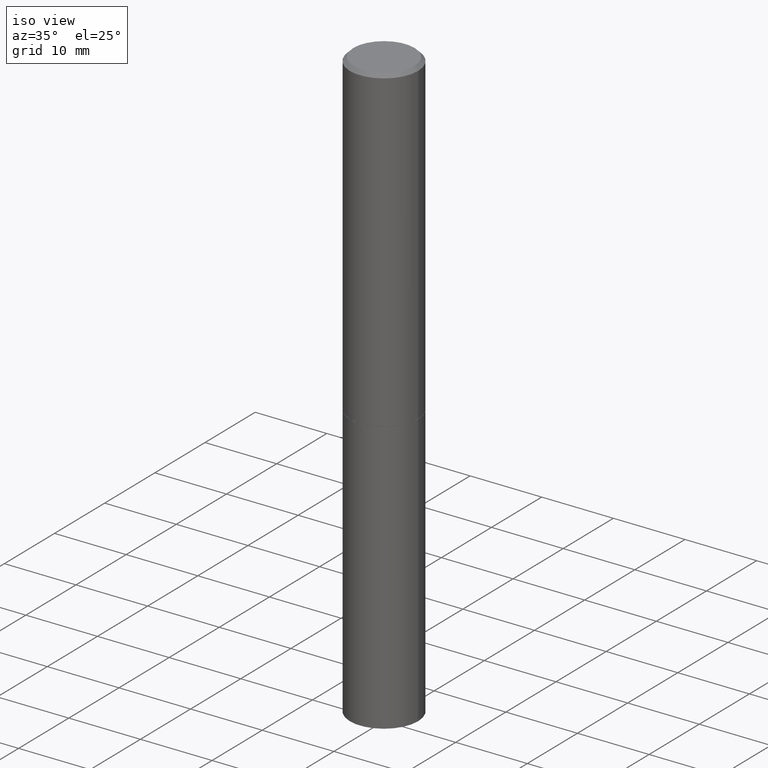
[diagram: clean part render]
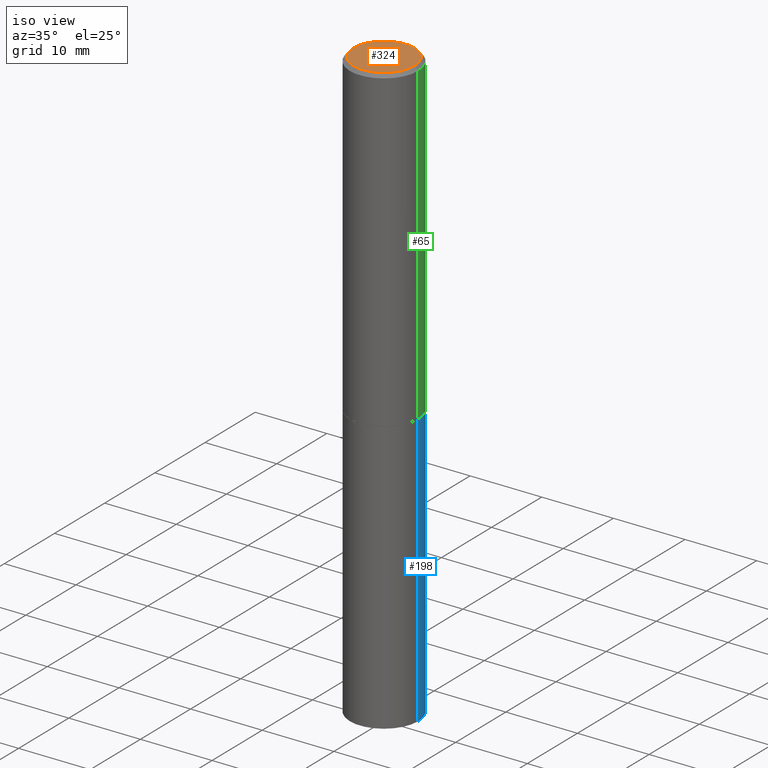
[diagram: same view with three faces highlighted in distinct colors, each labeled with its STEP entity id]
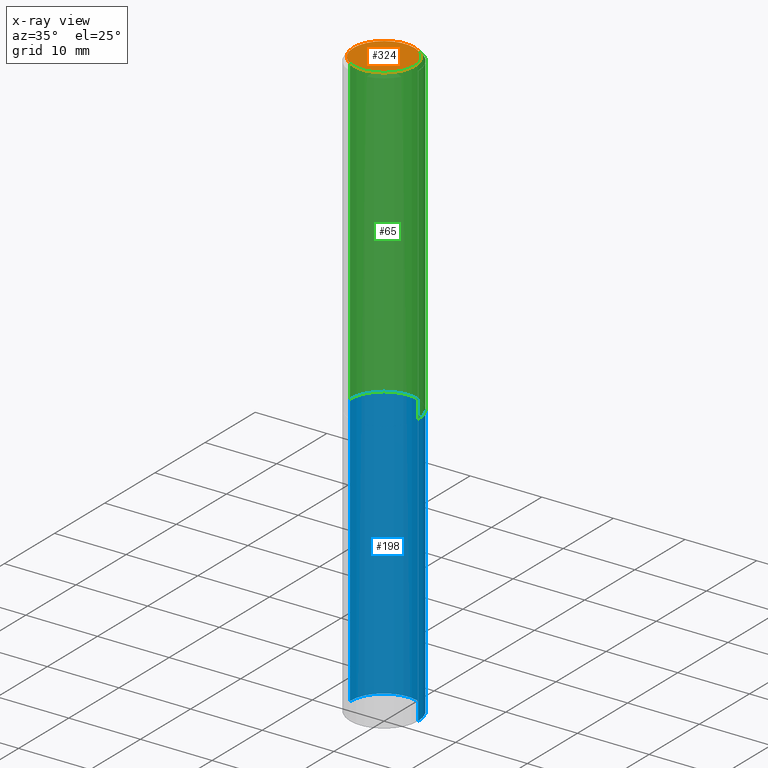
[diagram: x-ray of the same camera — body ghosted, the three highlighted faces saturated]
A machine part, iso view with three faces highlighted in distinct colors.
The next image is the same camera in x-ray (body ghosted, the three faces saturated) — at least one of them is partly hidden behind the body in this view.
Their STEP definitions:

[orange] entity #324 — the highlighted planar face has unit normal (0, -0, -1).
#8 = CIRCLE ( 'NONE', #335, 0.1674999999999998435 ) ;
#10 = DIRECTION ( 'NONE',  ( -2.445468806185136597E-29, 3.491481338843145583E-15, 1.000000000000000000 ) ) ;
#14 = DIRECTION ( 'NONE',  ( 1.000000000000000000, -6.982962677686266711E-15, 4.876502603340349702E-29 ) ) ;
#69 = DIRECTION ( 'NONE',  ( -1.000000000000000000, 6.982962677686265922E-15, -4.876176775795935793E-29 ) ) ;
#85 = DIRECTION ( 'NONE',  ( 1.000000000000000000, -6.982962677686266711E-15, 4.876502603340349702E-29 ) ) ;
#88 = AXIS2_PLACEMENT_3D ( 'NONE', #364, #360, #85 ) ;
#94 = CARTESIAN_POINT ( 'NONE',  ( 1.169646248512448609E-15, 0.1674999999999998435, -5.784203555210757353E-16 ) ) ;
#97 = EDGE_CURVE ( 'NONE', #265, #98, #8, .T. ) ;
#98 = VERTEX_POINT ( 'NONE', #128 ) ;
#128 = CARTESIAN_POINT ( 'NONE',  ( -0.1674999999999998435, 1.204561061900879864E-15, 1.280553747029293077E-17 ) ) ;
#137 = CIRCLE ( 'NONE', #88, 0.1674999999999998435 ) ;
#142 = AXIS2_PLACEMENT_3D ( 'NONE', #94, #321, #69 ) ;
#169 = CARTESIAN_POINT ( 'NONE',  ( 0.1674999999999998435, -1.252653207992877302E-15, 1.280553747030970331E-17 ) ) ;
#209 = PLANE ( 'NONE',  #142 ) ;
#232 = EDGE_CURVE ( 'NONE', #98, #265, #137, .T. ) ;
#235 = FACE_OUTER_BOUND ( 'NONE', #345, .T. ) ;
#238 = ORIENTED_EDGE ( 'NONE', *, *, #97, .T. ) ;
#265 = VERTEX_POINT ( 'NONE', #169 ) ;
#272 = CARTESIAN_POINT ( 'NONE',  ( -3.131554243005659264E-46, 4.471029511141341874E-32, 1.280553747030123384E-17 ) ) ;
#321 = DIRECTION ( 'NONE',  ( 2.438088387897960049E-29, -3.491481338843145188E-15, -1.000000000000000000 ) ) ;
#324 = ADVANCED_FACE ( 'NONE', ( #235 ), #209, .F. ) ;
#335 = AXIS2_PLACEMENT_3D ( 'NONE', #272, #10, #14 ) ;
#345 = EDGE_LOOP ( 'NONE', ( #348, #238 ) ) ;
#348 = ORIENTED_EDGE ( 'NONE', *, *, #232, .T. ) ;
#360 = DIRECTION ( 'NONE',  ( -2.445468806185136597E-29, 3.491481338843145583E-15, 1.000000000000000000 ) ) ;
#364 = CARTESIAN_POINT ( 'NONE',  ( -3.131554243005659264E-46, 4.471029511141341874E-32, 1.280553747030123384E-17 ) ) ;

[blue] entity #198 — the highlighted cylindrical surface (partial cylindrical patch) has radius 4.7625 mm, axis along (-0, 0, 1).
#9 = CARTESIAN_POINT ( 'NONE',  ( 0.000000000000000000, 0.000000000000000000, 0.000000000000000000 ) ) ;
#20 = DIRECTION ( 'NONE',  ( -2.445468806185136877E-29, 3.491481338843145188E-15, 1.000000000000000000 ) ) ;
#32 = DIRECTION ( 'NONE',  ( 1.000000000000000000, -6.982962677686261189E-15, 0.000000000000000000 ) ) ;
#33 = ORIENTED_EDGE ( 'NONE', *, *, #349, .F. ) ;
#62 = ORIENTED_EDGE ( 'NONE', *, *, #204, .F. ) ;
#70 = CARTESIAN_POINT ( 'NONE',  ( 0.1875000000000000555, -7.419397845041680468E-15, -1.750000000000000222 ) ) ;
#92 = FACE_OUTER_BOUND ( 'NONE', #268, .T. ) ;
#101 = ORIENTED_EDGE ( 'NONE', *, *, #187, .T. ) ;
#102 = VERTEX_POINT ( 'NONE', #70 ) ;
#112 = CARTESIAN_POINT ( 'NONE',  ( -0.1875000000000000278, -7.396435717557677094E-15, -3.250000000000000000 ) ) ;
#121 = AXIS2_PLACEMENT_3D ( 'NONE', #313, #342, #176 ) ;
#127 = DIRECTION ( 'NONE',  ( -2.445468806185136597E-29, 3.491481338843145583E-15, 1.000000000000000000 ) ) ;
#129 = DIRECTION ( 'NONE',  ( -2.445468806185136877E-29, 3.491481338843145188E-15, 1.000000000000000000 ) ) ;
#147 = CARTESIAN_POINT ( 'NONE',  ( 7.947773620101693940E-29, -1.134731435124022443E-14, -3.250000000000000000 ) ) ;
#159 = VECTOR ( 'NONE', #129, 39.37007874015748143 ) ;
#176 = DIRECTION ( 'NONE',  ( 1.000000000000000000, -6.982962677686265922E-15, 0.000000000000000000 ) ) ;
#187 = EDGE_CURVE ( 'NONE', #201, #292, #216, .T. ) ;
#189 = CARTESIAN_POINT ( 'NONE',  ( 0.1875000000000000555, -1.309305502066175205E-15, 9.142831454617382414E-30 ) ) ;
#192 = AXIS2_PLACEMENT_3D ( 'NONE', #9, #127, #347 ) ;
#198 = ADVANCED_FACE ( 'NONE', ( #92 ), #267, .T. ) ;
#201 = VERTEX_POINT ( 'NONE', #112 ) ;
#204 = EDGE_CURVE ( 'NONE', #102, #292, #355, .T. ) ;
#210 = CARTESIAN_POINT ( 'NONE',  ( -0.1875000000000000555, 1.332267629550188243E-15, -9.223003294227950793E-30 ) ) ;
#216 = LINE ( 'NONE', #210, #159 ) ;
#243 = VERTEX_POINT ( 'NONE', #366 ) ;
#259 = DIRECTION ( 'NONE',  ( -2.445468806185136597E-29, 3.491481338843145583E-15, 1.000000000000000000 ) ) ;
#263 = CARTESIAN_POINT ( 'NONE',  ( -0.1875000000000000555, -7.396435717557675516E-15, -1.750000000000000222 ) ) ;
#267 = CYLINDRICAL_SURFACE ( 'NONE', #192, 0.1875000000000000555 ) ;
#268 = EDGE_LOOP ( 'NONE', ( #329, #101, #62, #33 ) ) ;
#274 = CIRCLE ( 'NONE', #338, 0.1875000000000000278 ) ;
#284 = EDGE_CURVE ( 'NONE', #243, #201, #274, .T. ) ;
#292 = VERTEX_POINT ( 'NONE', #263 ) ;
#313 = CARTESIAN_POINT ( 'NONE',  ( 4.279570410823989044E-29, -6.110092342975505460E-15, -1.750000000000000222 ) ) ;
#317 = VECTOR ( 'NONE', #20, 39.37007874015748143 ) ;
#329 = ORIENTED_EDGE ( 'NONE', *, *, #284, .T. ) ;
#338 = AXIS2_PLACEMENT_3D ( 'NONE', #147, #259, #32 ) ;
#342 = DIRECTION ( 'NONE',  ( -2.445468806185136597E-29, 3.491481338843145583E-15, 1.000000000000000000 ) ) ;
#347 = DIRECTION ( 'NONE',  ( 1.000000000000000000, -6.982962677686265922E-15, 4.876176775795935793E-29 ) ) ;
#349 = EDGE_CURVE ( 'NONE', #243, #102, #353, .T. ) ;
#353 = LINE ( 'NONE', #189, #317 ) ;
#355 = CIRCLE ( 'NONE', #121, 0.1875000000000000555 ) ;
#366 = CARTESIAN_POINT ( 'NONE',  ( 0.1875000000000000278, -1.265661985330639786E-14, -3.250000000000000000 ) ) ;

[green] entity #65 — the highlighted cylindrical surface (partial cylindrical patch) has radius 4.7625 mm, axis along (-0, 0, 1).
#28 = DIRECTION ( 'NONE',  ( -2.445468806185136877E-29, 3.491481338843145188E-15, 1.000000000000000000 ) ) ;
#36 = CIRCLE ( 'NONE', #164, 0.1875000000000000555 ) ;
#51 = DIRECTION ( 'NONE',  ( 1.000000000000000000, -6.982962677686265922E-15, 0.000000000000000000 ) ) ;
#65 = ADVANCED_FACE ( 'NONE', ( #305 ), #158, .T. ) ;
#66 = AXIS2_PLACEMENT_3D ( 'NONE', #271, #104, #184 ) ;
#78 = ORIENTED_EDGE ( 'NONE', *, *, #156, .F. ) ;
#100 = CARTESIAN_POINT ( 'NONE',  ( -0.1875000000000000278, -1.755947614656572858E-15, -1.749000000000000110 ) ) ;
#104 = DIRECTION ( 'NONE',  ( -2.445468806185136597E-29, 3.491481338843145583E-15, 1.000000000000000000 ) ) ;
#107 = VECTOR ( 'NONE', #240, 39.37007874015748143 ) ;
#111 = CARTESIAN_POINT ( 'NONE',  ( -0.1874999999999998335, 1.239475875289310724E-15, -0.02000000000000002123 ) ) ;
#115 = EDGE_CURVE ( 'NONE', #296, #244, #172, .T. ) ;
#123 = EDGE_LOOP ( 'NONE', ( #242, #354, #78, #270 ) ) ;
#135 = DIRECTION ( 'NONE',  ( -2.445468806185136597E-29, 3.491481338843145583E-15, 1.000000000000000000 ) ) ;
#136 = EDGE_CURVE ( 'NONE', #233, #296, #36, .T. ) ;
#156 = EDGE_CURVE ( 'NONE', #239, #244, #177, .T. ) ;
#157 = CARTESIAN_POINT ( 'NONE',  ( 0.000000000000000000, 0.000000000000000000, 0.000000000000000000 ) ) ;
#158 = CYLINDRICAL_SURFACE ( 'NONE', #331, 0.1874999999999999445 ) ;
#164 = AXIS2_PLACEMENT_3D ( 'NONE', #332, #310, #51 ) ;
#172 = LINE ( 'NONE', #320, #107 ) ;
#175 = CARTESIAN_POINT ( 'NONE',  ( 0.1874999999999999445, -1.309305502066174614E-15, 9.142831454617376809E-30 ) ) ;
#177 = CIRCLE ( 'NONE', #66, 0.1874999999999998335 ) ;
#184 = DIRECTION ( 'NONE',  ( 1.000000000000000000, -6.982962677686266711E-15, 0.000000000000000000 ) ) ;
#195 = CARTESIAN_POINT ( 'NONE',  ( 0.1874999999999998335, -1.356173001359024283E-15, -0.02000000000000002123 ) ) ;
#199 = CARTESIAN_POINT ( 'NONE',  ( 0.1875000000000000555, -7.415906363702837461E-15, -1.749000000000000110 ) ) ;
#233 = VERTEX_POINT ( 'NONE', #199 ) ;
#239 = VERTEX_POINT ( 'NONE', #195 ) ;
#240 = DIRECTION ( 'NONE',  ( -2.445468806185136877E-29, 3.491481338843145188E-15, 1.000000000000000000 ) ) ;
#242 = ORIENTED_EDGE ( 'NONE', *, *, #136, .T. ) ;
#244 = VERTEX_POINT ( 'NONE', #111 ) ;
#256 = EDGE_CURVE ( 'NONE', #233, #239, #293, .T. ) ;
#270 = ORIENTED_EDGE ( 'NONE', *, *, #256, .F. ) ;
#271 = CARTESIAN_POINT ( 'NONE',  ( 4.890937612370278413E-31, -6.982962677686297772E-17, -0.02000000000000002123 ) ) ;
#293 = LINE ( 'NONE', #175, #333 ) ;
#296 = VERTEX_POINT ( 'NONE', #100 ) ;
#305 = FACE_OUTER_BOUND ( 'NONE', #123, .T. ) ;
#310 = DIRECTION ( 'NONE',  ( -2.445468806185136597E-29, 3.491481338843145583E-15, 1.000000000000000000 ) ) ;
#320 = CARTESIAN_POINT ( 'NONE',  ( -0.1874999999999999445, 1.332267629550187454E-15, -9.223003294227945188E-30 ) ) ;
#322 = DIRECTION ( 'NONE',  ( 1.000000000000000000, -6.982962677686266711E-15, 4.876176775795935793E-29 ) ) ;
#331 = AXIS2_PLACEMENT_3D ( 'NONE', #157, #135, #322 ) ;
#332 = CARTESIAN_POINT ( 'NONE',  ( 4.277124942017804562E-29, -6.106600861636661664E-15, -1.749000000000000110 ) ) ;
#333 = VECTOR ( 'NONE', #28, 39.37007874015748143 ) ;
#354 = ORIENTED_EDGE ( 'NONE', *, *, #115, .T. ) ;